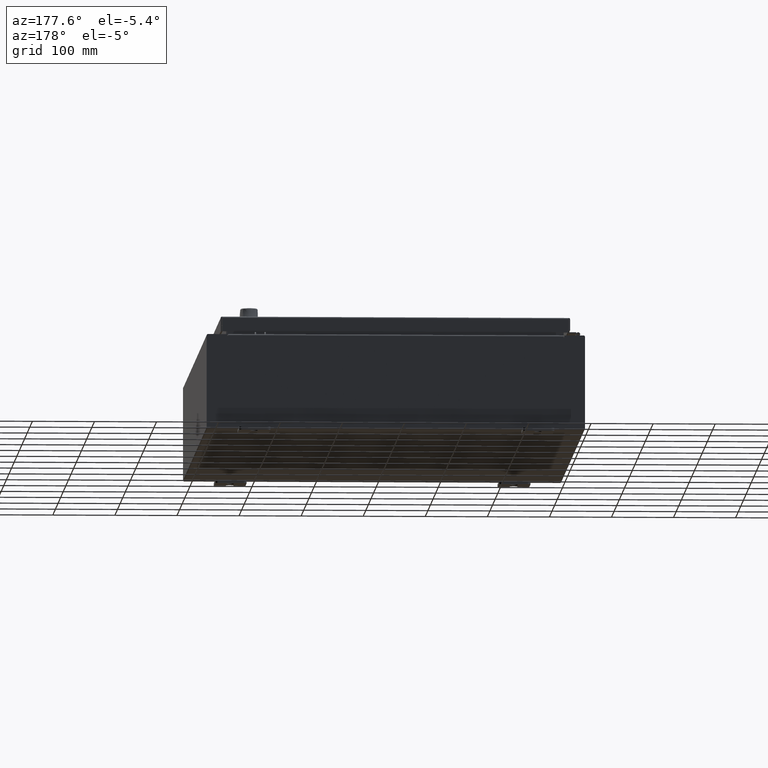
[diagram: clean part render]
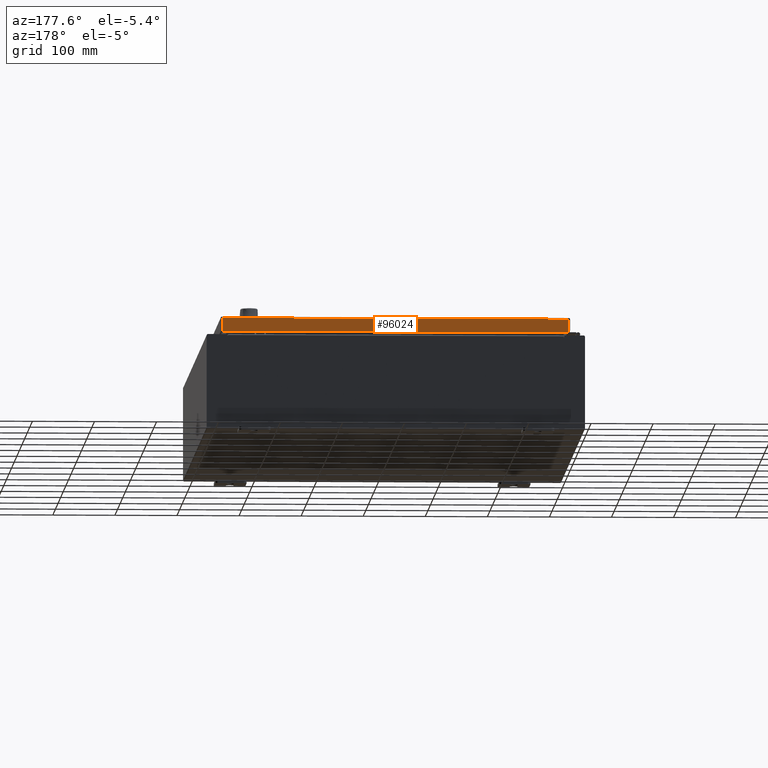
[diagram: same view with one face highlighted and labeled with its STEP entity id]
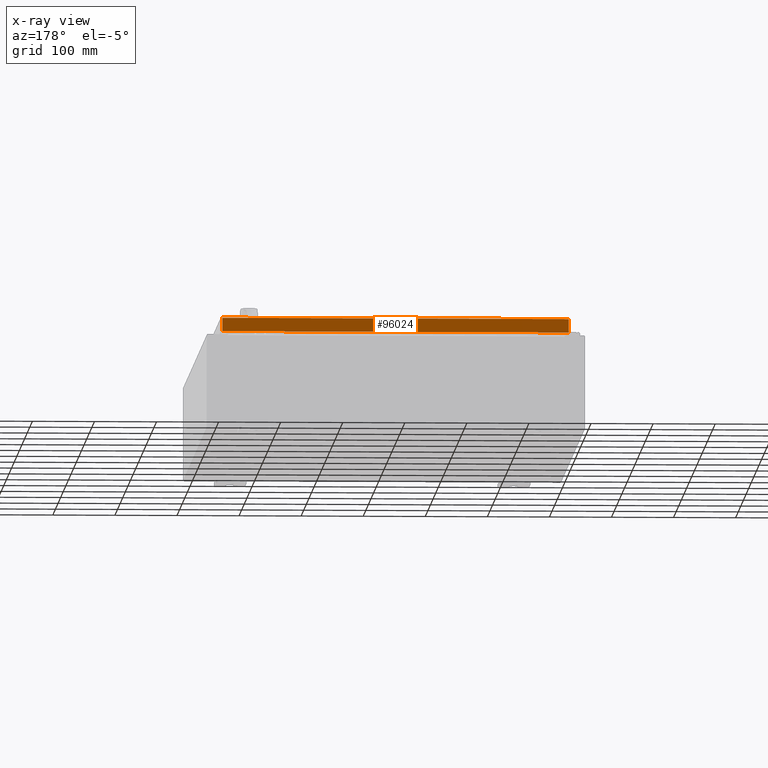
[diagram: x-ray of the same camera — body ghosted, the highlighted face saturated]
A machine part, auxiliary view. The second image highlights one B-rep face of the part: STEP entity #96024.
The next image is the same camera in x-ray: the body ghosted, the highlighted face saturated — about 0% of this face is hidden behind the body in this view.
In plain terms, the highlighted planar face has unit normal (0, -1, -0).
Its self-contained STEP definition (entity closure, byte-faithful):
#2244 = LINE ( 'NONE', #61997, #52793 ) ;
#5184 = CARTESIAN_POINT ( 'NONE',  ( -10.98915786437626900, 17.09400000000000800, -0.08770000000000008300 ) ) ;
#11145 = CARTESIAN_POINT ( 'NONE',  ( -11.07800000000000300, 17.09400000000000800, -0.9377000000000025300 ) ) ;
#16144 = DIRECTION ( 'NONE',  ( 3.122488847327582500E-031, -1.000000000000000000, -2.532419924601858200E-015 ) ) ;
#16456 = EDGE_CURVE ( 'NONE', #67660, #46162, #68754, .T. ) ;
#21136 = DIRECTION ( 'NONE',  ( 1.000000000000000000, -4.379057701015054300E-047, 1.233005954894504400E-016 ) ) ;
#29555 = LINE ( 'NONE', #32954, #77122 ) ;
#31573 = EDGE_CURVE ( 'NONE', #53217, #46162, #119279, .T. ) ;
#32954 = CARTESIAN_POINT ( 'NONE',  ( -10.98915786437627200, 17.09400000000000800, -0.07469999999999980800 ) ) ;
#33148 = ORIENTED_EDGE ( 'NONE', *, *, #16456, .T. ) ;
#37569 = ORIENTED_EDGE ( 'NONE', *, *, #31573, .F. ) ;
#37728 = VERTEX_POINT ( 'NONE', #5184 ) ;
#46162 = VERTEX_POINT ( 'NONE', #114742 ) ;
#46463 = VECTOR ( 'NONE', #64515, 39.37007874015748100 ) ;
#52793 = VECTOR ( 'NONE', #119076, 39.37007874015748100 ) ;
#53217 = VERTEX_POINT ( 'NONE', #110854 ) ;
#53455 = AXIS2_PLACEMENT_3D ( 'NONE', #73057, #16144, #82659 ) ;
#57938 = FACE_OUTER_BOUND ( 'NONE', #95156, .T. ) ;
#61997 = CARTESIAN_POINT ( 'NONE',  ( -11.07800000000000300, 17.09400000000000800, -0.08770000000000008300 ) ) ;
#64316 = ORIENTED_EDGE ( 'NONE', *, *, #97012, .F. ) ;
#64515 = DIRECTION ( 'NONE',  ( 0.0000000000000000000, 2.532419924601858200E-015, -1.000000000000000000 ) ) ;
#67660 = VERTEX_POINT ( 'NONE', #76528 ) ;
#68754 = LINE ( 'NONE', #121534, #46463 ) ;
#73057 = CARTESIAN_POINT ( 'NONE',  ( -5.337582435621772200E-030, 17.09400000000000800, 4.354999984715576500E-014 ) ) ;
#76528 = CARTESIAN_POINT ( 'NONE',  ( 10.98915786437626500, 17.09400000000000800, -0.08770000000000008300 ) ) ;
#77122 = VECTOR ( 'NONE', #99551, 39.37007874015748100 ) ;
#82659 = DIRECTION ( 'NONE',  ( 0.0000000000000000000, 2.532419924601858200E-015, -1.000000000000000000 ) ) ;
#91818 = PLANE ( 'NONE',  #53455 ) ;
#95156 = EDGE_LOOP ( 'NONE', ( #116870, #33148, #37569, #64316 ) ) ;
#96024 = ADVANCED_FACE ( 'NONE', ( #57938 ), #91818, .F. ) ;
#97012 = EDGE_CURVE ( 'NONE', #37728, #53217, #29555, .T. ) ;
#99551 = DIRECTION ( 'NONE',  ( -0.0000000000000000000, 2.532419924601858200E-015, -1.000000000000000000 ) ) ;
#106068 = EDGE_CURVE ( 'NONE', #67660, #37728, #2244, .T. ) ;
#110854 = CARTESIAN_POINT ( 'NONE',  ( -10.98915786437627200, 17.09400000000000800, -0.9377000000000025300 ) ) ;
#114742 = CARTESIAN_POINT ( 'NONE',  ( 10.98915786437626500, 17.09400000000000800, -0.9376999999999997600 ) ) ;
#116305 = VECTOR ( 'NONE', #21136, 39.37007874015748100 ) ;
#116870 = ORIENTED_EDGE ( 'NONE', *, *, #106068, .F. ) ;
#119076 = DIRECTION ( 'NONE',  ( -1.000000000000000000, -3.122488847327583000E-031, -7.817847125977018100E-046 ) ) ;
#119279 = LINE ( 'NONE', #11145, #116305 ) ;
#121534 = CARTESIAN_POINT ( 'NONE',  ( 10.98915786437626500, 17.09400000000000800, 4.354999984715576500E-014 ) ) ;